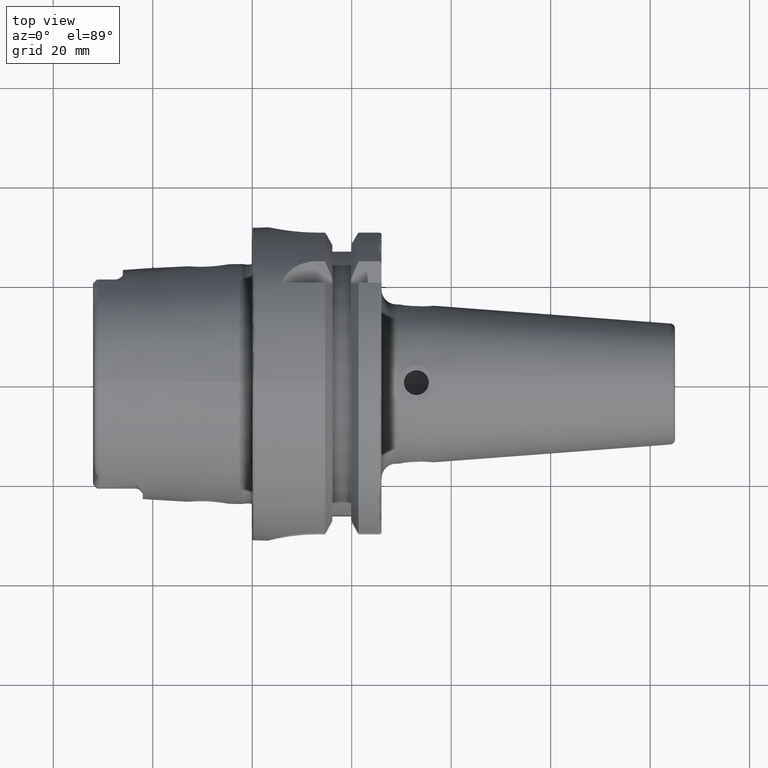
[diagram: clean part render]
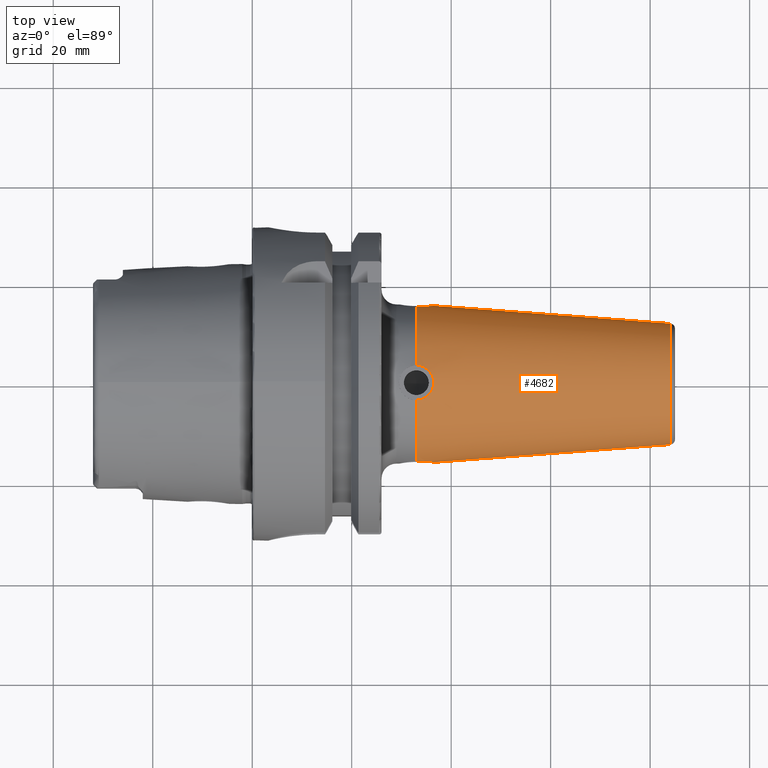
[diagram: same view with one face highlighted and labeled with its STEP entity id]
A machine part, top view. The second image highlights one B-rep face of the part: STEP entity #4682.
In plain terms, the highlighted conical surface has half-angle 4.3 deg.
Its self-contained STEP definition (entity closure, byte-faithful):
#1131=CARTESIAN_POINT('',(3.309924170346E0,0.E0,0.E0));
#1132=DIRECTION('',(1.E0,0.E0,0.E0));
#1133=DIRECTION('',(0.E0,1.E0,-1.211622526234E-10));
#1134=AXIS2_PLACEMENT_3D('',#1131,#1132,#1133);
#1136=DIRECTION('',(9.971851335251E-1,7.497872682633E-2,-7.648754230821E-10));
#1137=VECTOR('',#1136,1.878211083981E0);
#1138=CARTESIAN_POINT('',(1.436999999778E0,-6.196237278941E-1,
3.753765988089E-11));
#1139=LINE('',#1138,#1137);
#1140=CARTESIAN_POINT('',(1.299E0,-6.146999267936E-1,1.38E-1));
#1141=CARTESIAN_POINT('',(1.309235438352E0,-6.139111645723E-1,1.38E-1));
#1142=CARTESIAN_POINT('',(1.329748996505E0,-6.128444130795E-1,
1.357458458871E-1));
#1143=CARTESIAN_POINT('',(1.359513835628E0,-6.128150975092E-1,
1.253026786050E-1));
#1144=CARTESIAN_POINT('',(1.385449134289E0,-6.139918447711E-1,
1.090467519638E-1));
#1145=CARTESIAN_POINT('',(1.407809687804E0,-6.158953093910E-1,
8.676591373123E-2));
#1146=CARTESIAN_POINT('',(1.424201919063E0,-6.178200901421E-1,
6.072378387633E-2));
#1147=CARTESIAN_POINT('',(1.434678242990E0,-6.192736603289E-1,
3.105831275853E-2));
#1148=CARTESIAN_POINT('',(1.436999999778E0,-6.196237278929E-1,
1.035925516750E-2));
#1149=CARTESIAN_POINT('',(1.436999999778E0,-6.196237278941E-1,
3.753765988089E-11));
#1151=CARTESIAN_POINT('',(1.437E0,0.E0,6.196237278774E-1));
#1152=CARTESIAN_POINT('',(1.437E0,-9.403578788376E-3,6.196237278774E-1));
#1153=CARTESIAN_POINT('',(1.435097017906E0,-2.765188787514E-2,
6.193387623512E-1));
#1154=CARTESIAN_POINT('',(1.427319493778E0,-5.280045836435E-2,
6.182457591174E-1));
#1155=CARTESIAN_POINT('',(1.416342403535E0,-7.376175145344E-2,
6.168779526381E-1));
#1156=CARTESIAN_POINT('',(1.403489333883E0,-9.093429919333E-2,
6.155276535048E-1));
#1157=CARTESIAN_POINT('',(1.389109789563E0,-1.051306874325E-1,
6.143374521950E-1));
#1158=CARTESIAN_POINT('',(1.373576076785E0,-1.166502827589E-1,
6.134284350158E-1));
#1159=CARTESIAN_POINT('',(1.356347987237E0,-1.260361691322E-1,
6.128800158721E-1));
#1160=CARTESIAN_POINT('',(1.337820481875E0,-1.329158864960E-1,
6.128402170801E-1));
#1161=CARTESIAN_POINT('',(1.318569843335E0,-1.370752670970E-1,
6.134004921917E-1));
#1162=CARTESIAN_POINT('',(1.305515976702E0,-1.38E-1,6.141977933157E-1));
#1163=CARTESIAN_POINT('',(1.299E0,-1.38E-1,6.146999267936E-1));
#1165=CARTESIAN_POINT('',(1.299E0,1.38E-1,6.146999267936E-1));
#1166=CARTESIAN_POINT('',(1.305388586023E0,1.38E-1,6.142076102822E-1));
#1167=CARTESIAN_POINT('',(1.318190520210E0,1.371115909543E-1,
6.134214819144E-1));
#1168=CARTESIAN_POINT('',(1.337110001062E0,1.331040957433E-1,
6.128535167118E-1));
#1169=CARTESIAN_POINT('',(1.355324408557E0,1.264748831750E-1,
6.128668181103E-1));
#1170=CARTESIAN_POINT('',(1.372256639686E0,1.174626073903E-1,
6.133722973478E-1));
#1171=CARTESIAN_POINT('',(1.387687439800E0,1.063170955372E-1,
6.142390827277E-1));
#1172=CARTESIAN_POINT('',(1.402128586345E0,9.246947288578E-2,
6.154002413526E-1));
#1173=CARTESIAN_POINT('',(1.415253821210E0,7.546847386114E-2,
6.167521119941E-1));
#1174=CARTESIAN_POINT('',(1.426597140366E0,5.457582801214E-2,
6.181482560023E-1));
#1175=CARTESIAN_POINT('',(1.434902994163E0,2.888677706863E-2,
6.193093573398E-1));
#1176=CARTESIAN_POINT('',(1.437E0,9.873144546375E-3,6.196237278774E-1));
#1177=CARTESIAN_POINT('',(1.437E0,0.E0,6.196237278774E-1));
#1179=CARTESIAN_POINT('',(1.436999999778E0,6.196237278941E-1,
-3.753754491672E-11));
#1180=CARTESIAN_POINT('',(1.436999999778E0,6.196237278955E-1,
1.147919067128E-2));
#1181=CARTESIAN_POINT('',(1.434123389567E0,6.191924894818E-1,
3.304720816437E-2));
#1182=CARTESIAN_POINT('',(1.424393268699E0,6.178560372849E-1,
5.956190512531E-2));
#1183=CARTESIAN_POINT('',(1.411725526503E0,6.163529711906E-1,
8.077147134949E-2));
#1184=CARTESIAN_POINT('',(1.396684077558E0,6.149094748668E-1,
9.832590721640E-2));
#1185=CARTESIAN_POINT('',(1.380084152578E0,6.137466437942E-1,
1.123462383942E-1));
#1186=CARTESIAN_POINT('',(1.361771358111E0,6.129823384478E-1,
1.235273027180E-1));
#1187=CARTESIAN_POINT('',(1.341676722352E0,6.127805786492E-1,
1.318359876661E-1));
#1188=CARTESIAN_POINT('',(1.320526644732E0,6.132933867357E-1,
1.368828357391E-1));
#1189=CARTESIAN_POINT('',(1.306165356253E0,6.141477509004E-1,1.38E-1));
#1190=CARTESIAN_POINT('',(1.299E0,6.146999267936E-1,1.38E-1));
#1197=DIRECTION('',(9.971851335251E-1,-7.497872682633E-2,7.648753347912E-10));
#1198=VECTOR('',#1197,1.878211083981E0);
#1199=CARTESIAN_POINT('',(1.436999999778E0,6.196237278941E-1,
-3.753754491672E-11));
#1200=LINE('',#1199,#1198);
#2307=CARTESIAN_POINT('',(1.299E0,6.146999267936E-1,1.38E-1));
#2318=CARTESIAN_POINT('',(1.299E0,0.E0,0.E0));
#2319=DIRECTION('',(-1.E0,0.E0,0.E0));
#2320=DIRECTION('',(0.E0,2.190476190476E-1,9.757141695136E-1));
#2321=AXIS2_PLACEMENT_3D('',#2318,#2319,#2320);
#2335=CARTESIAN_POINT('',(1.299E0,1.38E-1,6.146999267936E-1));
#2337=CARTESIAN_POINT('',(1.299E0,-1.38E-1,6.146999267936E-1));
#2348=CARTESIAN_POINT('',(1.299E0,0.E0,0.E0));
#2349=DIRECTION('',(-1.E0,0.E0,0.E0));
#2350=DIRECTION('',(0.E0,-9.757141695136E-1,2.190476190476E-1));
#2351=AXIS2_PLACEMENT_3D('',#2348,#2349,#2350);
#2362=CARTESIAN_POINT('',(1.299E0,-6.146999267936E-1,1.38E-1));
#3334=VERTEX_POINT('',#2337);
#3336=VERTEX_POINT('',#2335);
#3337=VERTEX_POINT('',#1151);
#3343=VERTEX_POINT('',#2362);
#3345=VERTEX_POINT('',#1149);
#3358=VERTEX_POINT('',#2307);
#3361=VERTEX_POINT('',#1179);
#3378=CARTESIAN_POINT('',(3.309924170346E0,-4.787978521061E-1,
5.801227399106E-11));
#3379=CARTESIAN_POINT('',(3.309924170346E0,4.787978521061E-1,
-5.801233262688E-11));
#3380=VERTEX_POINT('',#3378);
#3381=VERTEX_POINT('',#3379);
#4658=CARTESIAN_POINT('',(2.304462085173E0,0.E0,0.E0));
#4659=DIRECTION('',(-1.E0,0.E0,0.E0));
#4660=DIRECTION('',(0.E0,0.E0,-1.E0));
#4661=AXIS2_PLACEMENT_3D('',#4658,#4659,#4660);
#4662=CONICAL_SURFACE('',#4661,5.543989260531E-1,4.3E0);
#4663=ORIENTED_EDGE('',*,*,#4652,.T.);
#4665=ORIENTED_EDGE('',*,*,#4664,.F.);
#4667=ORIENTED_EDGE('',*,*,#4666,.F.);
#4669=ORIENTED_EDGE('',*,*,#4668,.T.);
#4671=ORIENTED_EDGE('',*,*,#4670,.F.);
#4673=ORIENTED_EDGE('',*,*,#4672,.F.);
#4675=ORIENTED_EDGE('',*,*,#4674,.T.);
#4677=ORIENTED_EDGE('',*,*,#4676,.F.);
#4679=ORIENTED_EDGE('',*,*,#4678,.T.);
#4680=EDGE_LOOP('',(#4663,#4665,#4667,#4669,#4671,#4673,#4675,#4677,#4679));
#4681=FACE_OUTER_BOUND('',#4680,.F.);
#4682=ADVANCED_FACE('',(#4681),#4662,.T.);
#1135=CIRCLE('',#1134,4.787978521061E-1);
#1150=B_SPLINE_CURVE_WITH_KNOTS('',3,(#1140,#1141,#1142,#1143,#1144,#1145,#1146,
#1147,#1148,#1149),.UNSPECIFIED.,.F.,.F.,(4,1,1,1,1,1,1,4),(0.E0,
1.428571428571E-1,2.857142857143E-1,4.285714285714E-1,5.714285714286E-1,
7.142857142857E-1,8.571428571429E-1,1.E0),.UNSPECIFIED.);
#1164=B_SPLINE_CURVE_WITH_KNOTS('',3,(#1151,#1152,#1153,#1154,#1155,#1156,#1157,
#1158,#1159,#1160,#1161,#1162,#1163),.UNSPECIFIED.,.F.,.F.,(4,1,1,1,1,1,1,1,1,1,
4),(0.E0,1.E-1,2.E-1,3.E-1,4.E-1,5.E-1,6.E-1,7.E-1,8.E-1,9.E-1,1.E0),
.UNSPECIFIED.);
#1178=B_SPLINE_CURVE_WITH_KNOTS('',3,(#1165,#1166,#1167,#1168,#1169,#1170,#1171,
#1172,#1173,#1174,#1175,#1176,#1177),.UNSPECIFIED.,.F.,.F.,(4,1,1,1,1,1,1,1,1,1,
4),(0.E0,1.E-1,2.E-1,3.E-1,4.E-1,5.E-1,6.E-1,7.E-1,8.E-1,9.E-1,1.E0),
.UNSPECIFIED.);
#1191=B_SPLINE_CURVE_WITH_KNOTS('',3,(#1179,#1180,#1181,#1182,#1183,#1184,#1185,
#1186,#1187,#1188,#1189,#1190),.UNSPECIFIED.,.F.,.F.,(4,1,1,1,1,1,1,1,1,4),
(0.E0,1.111111111111E-1,2.222222222222E-1,3.333333333333E-1,4.444444444444E-1,
5.555555555556E-1,6.666666666667E-1,7.777777777778E-1,8.888888888889E-1,1.E0),
.UNSPECIFIED.);
#2322=CIRCLE('',#2321,6.3E-1);
#2352=CIRCLE('',#2351,6.3E-1);
#4652=EDGE_CURVE('',#3381,#3380,#1135,.T.);
#4664=EDGE_CURVE('',#3345,#3380,#1139,.T.);
#4666=EDGE_CURVE('',#3343,#3345,#1150,.T.);
#4668=EDGE_CURVE('',#3343,#3334,#2352,.T.);
#4670=EDGE_CURVE('',#3337,#3334,#1164,.T.);
#4672=EDGE_CURVE('',#3336,#3337,#1178,.T.);
#4674=EDGE_CURVE('',#3336,#3358,#2322,.T.);
#4676=EDGE_CURVE('',#3361,#3358,#1191,.T.);
#4678=EDGE_CURVE('',#3361,#3381,#1200,.T.);